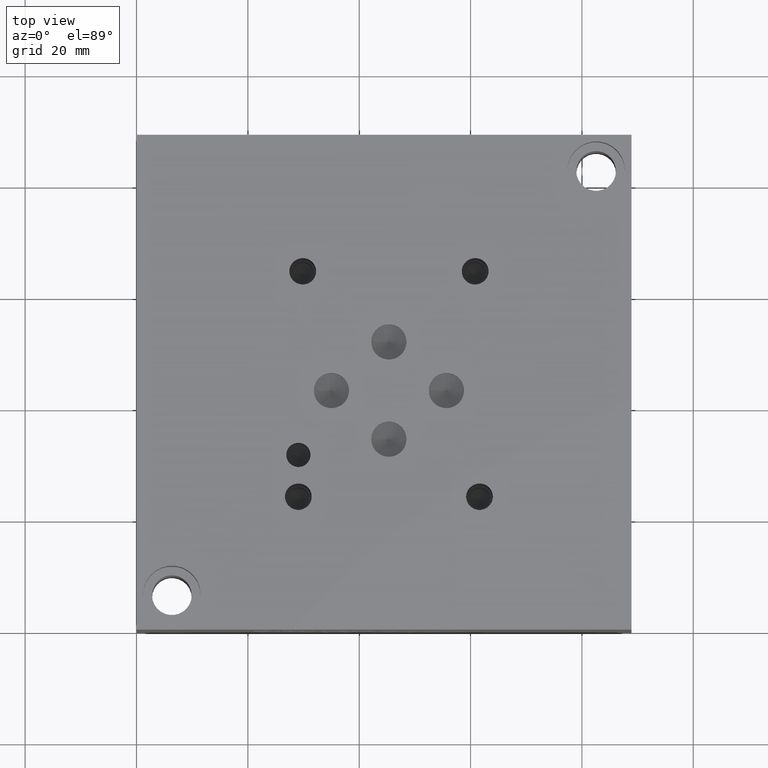
[diagram: clean part render]
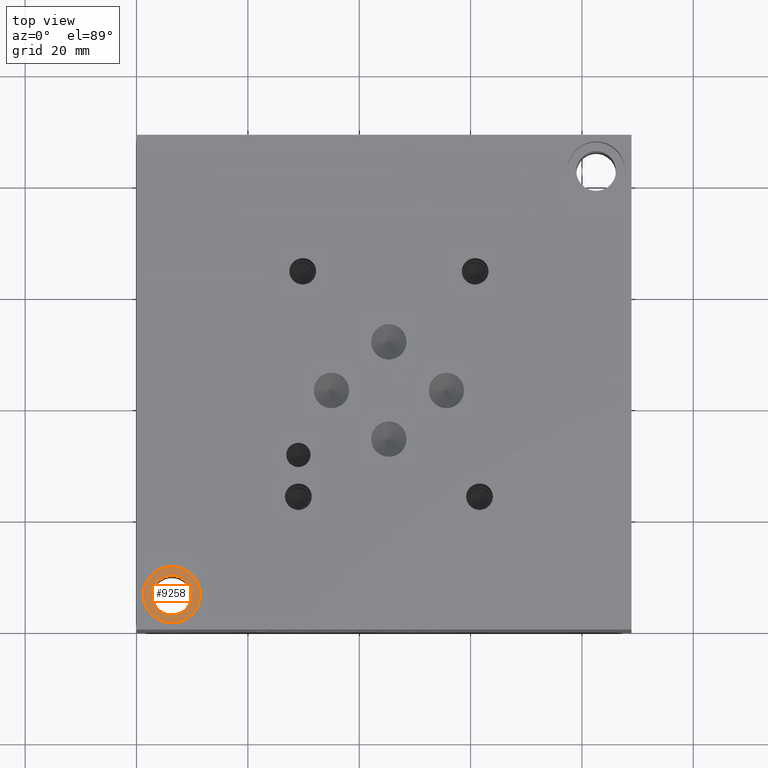
[diagram: same view with one face highlighted and labeled with its STEP entity id]
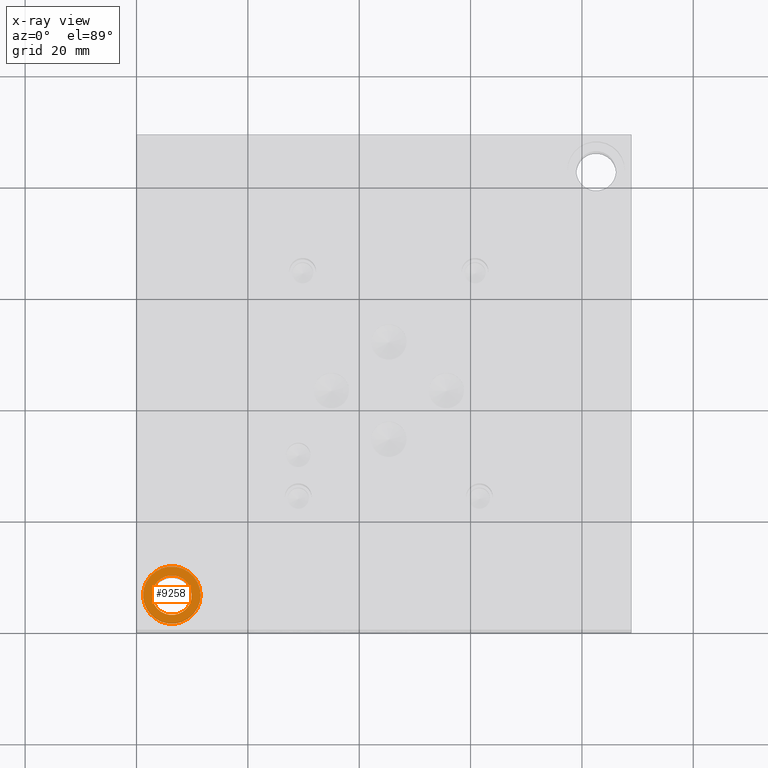
[diagram: x-ray of the same camera — body ghosted, the highlighted face saturated]
A machine part, top view. The second image highlights one B-rep face of the part: STEP entity #9258.
The next image is the same camera in x-ray: the body ghosted, the highlighted face saturated — about 0% of this face is hidden behind the body in this view.
In plain terms, the highlighted planar face has unit normal (0, 0, 1).
Its self-contained STEP definition (entity closure, byte-faithful):
#115=FACE_BOUND('',#1633,.T.);
#195=CIRCLE('',#9669,5.1562);
#196=CIRCLE('',#9670,5.1562);
#197=CIRCLE('',#9671,3.5687);
#1108=FACE_OUTER_BOUND('',#1632,.T.);
#1632=EDGE_LOOP('',(#7960,#7961));
#1633=EDGE_LOOP('',(#7962));
#4246=VERTEX_POINT('',#15802);
#4247=VERTEX_POINT('',#15803);
#4248=VERTEX_POINT('',#15806);
#5505=EDGE_CURVE('',#4246,#4247,#195,.T.);
#5506=EDGE_CURVE('',#4247,#4246,#196,.T.);
#5507=EDGE_CURVE('',#4248,#4248,#197,.T.);
#7960=ORIENTED_EDGE('',*,*,#5505,.T.);
#7961=ORIENTED_EDGE('',*,*,#5506,.T.);
#7962=ORIENTED_EDGE('',*,*,#5507,.F.);
#8423=PLANE('',#9668);
#9258=ADVANCED_FACE('',(#1108,#115),#8423,.T.);
#9668=AXIS2_PLACEMENT_3D('',#15801,#11329,#11330);
#9669=AXIS2_PLACEMENT_3D('',#15804,#11331,#11332);
#9670=AXIS2_PLACEMENT_3D('',#15805,#11333,#11334);
#9671=AXIS2_PLACEMENT_3D('',#15807,#11335,#11336);
#11329=DIRECTION('center_axis',(0.,0.,1.));
#11330=DIRECTION('ref_axis',(1.,0.,0.));
#11331=DIRECTION('center_axis',(0.,0.,1.));
#11332=DIRECTION('ref_axis',(1.,0.,0.));
#11333=DIRECTION('center_axis',(0.,0.,1.));
#11334=DIRECTION('ref_axis',(1.,0.,0.));
#11335=DIRECTION('center_axis',(0.,0.,1.));
#11336=DIRECTION('ref_axis',(1.,0.,0.));
#15801=CARTESIAN_POINT('Origin',(6.35,6.35,28.448));
#15802=CARTESIAN_POINT('',(11.5062,6.35,28.448));
#15803=CARTESIAN_POINT('',(1.1938,6.35,28.448));
#15804=CARTESIAN_POINT('Origin',(6.35,6.35,28.448));
#15805=CARTESIAN_POINT('Origin',(6.35,6.35,28.448));
#15806=CARTESIAN_POINT('',(2.7813,6.35,28.448));
#15807=CARTESIAN_POINT('Origin',(6.35,6.35,28.448));